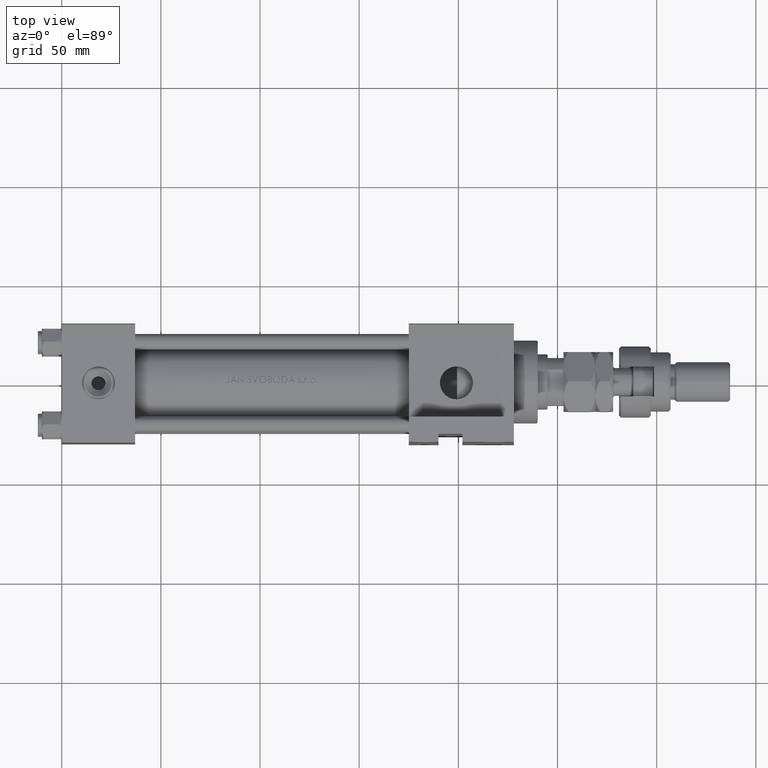
[diagram: clean part render]
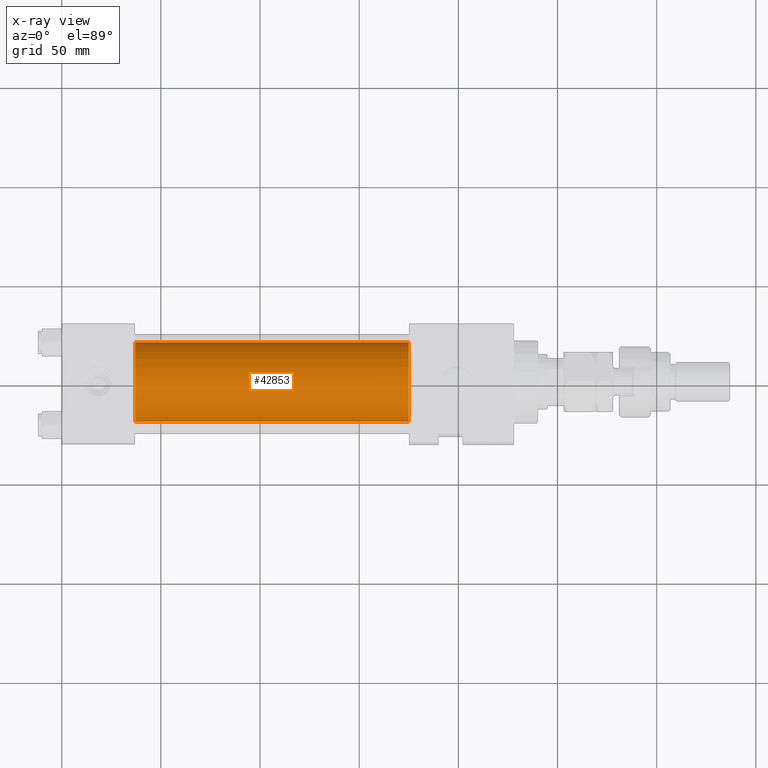
[diagram: x-ray — body ghosted, one internal face saturated and labeled with its STEP entity id]
A machine part, top view, then the same camera in x-ray: the body is ghosted and one INTERNAL B-rep face — a face not visible from any outside direction — is saturated and labeled: STEP entity #42853.
In plain terms, the highlighted cylindrical surface (partial cylindrical patch) has radius 20 mm, axis along (-1, -0, 0).
Its self-contained STEP definition (entity closure, byte-faithful):
#822 = CIRCLE ( 'NONE', #31166, 20.00000000000000000 ) ;
#985 = CYLINDRICAL_SURFACE ( 'NONE', #7741, 20.00000000000000000 ) ;
#3740 = VERTEX_POINT ( 'NONE', #33554 ) ;
#5449 = VERTEX_POINT ( 'NONE', #40893 ) ;
#6328 = CARTESIAN_POINT ( 'NONE',  ( 175.0000000000000284, 2.326828918379970970E-15, -19.00000000000000000 ) ) ;
#7741 = AXIS2_PLACEMENT_3D ( 'NONE', #38441, #22703, #14553 ) ;
#7776 = ORIENTED_EDGE ( 'NONE', *, *, #48169, .T. ) ;
#8664 = VECTOR ( 'NONE', #46732, 1000.000000000000000 ) ;
#9837 = CARTESIAN_POINT ( 'NONE',  ( 175.0000000000000284, -1.224646799147354686E-16, 21.00000000000000000 ) ) ;
#14553 = DIRECTION ( 'NONE',  ( 0.000000000000000000, 0.000000000000000000, 1.000000000000000000 ) ) ;
#15388 = ORIENTED_EDGE ( 'NONE', *, *, #40407, .F. ) ;
#17146 = CARTESIAN_POINT ( 'NONE',  ( 175.0000000000000284, -1.224646799147354686E-16, 1.000000000000000888 ) ) ;
#18720 = VERTEX_POINT ( 'NONE', #6328 ) ;
#19448 = VECTOR ( 'NONE', #46011, 1000.000000000000000 ) ;
#20783 = ORIENTED_EDGE ( 'NONE', *, *, #25328, .T. ) ;
#20932 = CIRCLE ( 'NONE', #44330, 20.00000000000000000 ) ;
#22703 = DIRECTION ( 'NONE',  ( -1.000000000000000000, -0.000000000000000000, -0.000000000000000000 ) ) ;
#25328 = EDGE_CURVE ( 'NONE', #18720, #3740, #49292, .T. ) ;
#26088 = VERTEX_POINT ( 'NONE', #50740 ) ;
#28999 = ORIENTED_EDGE ( 'NONE', *, *, #41178, .F. ) ;
#29630 = DIRECTION ( 'NONE',  ( 0.000000000000000000, 0.000000000000000000, -1.000000000000000000 ) ) ;
#31166 = AXIS2_PLACEMENT_3D ( 'NONE', #38316, #51296, #29630 ) ;
#33279 = CARTESIAN_POINT ( 'NONE',  ( 175.0000000000000284, 2.326828918379970970E-15, -19.00000000000000000 ) ) ;
#33554 = CARTESIAN_POINT ( 'NONE',  ( 37.00000000000000000, 2.326828918379970970E-15, -19.00000000000000000 ) ) ;
#38316 = CARTESIAN_POINT ( 'NONE',  ( 37.00000000000000000, -1.224646799147354686E-16, 1.000000000000000888 ) ) ;
#38441 = CARTESIAN_POINT ( 'NONE',  ( 175.0000000000000284, -1.224646799147354686E-16, 1.000000000000000888 ) ) ;
#40407 = EDGE_CURVE ( 'NONE', #5449, #3740, #822, .T. ) ;
#40893 = CARTESIAN_POINT ( 'NONE',  ( 37.00000000000000000, -1.224646799147354686E-16, 21.00000000000000000 ) ) ;
#41178 = EDGE_CURVE ( 'NONE', #26088, #5449, #50771, .T. ) ;
#42853 = ADVANCED_FACE ( 'NONE', ( #50611 ), #985, .F. ) ;
#44330 = AXIS2_PLACEMENT_3D ( 'NONE', #17146, #49710, #45130 ) ;
#45130 = DIRECTION ( 'NONE',  ( 0.000000000000000000, 0.000000000000000000, -1.000000000000000000 ) ) ;
#46011 = DIRECTION ( 'NONE',  ( -1.000000000000000000, -0.000000000000000000, -0.000000000000000000 ) ) ;
#46732 = DIRECTION ( 'NONE',  ( -1.000000000000000000, -0.000000000000000000, -0.000000000000000000 ) ) ;
#48169 = EDGE_CURVE ( 'NONE', #26088, #18720, #20932, .T. ) ;
#49292 = LINE ( 'NONE', #33279, #19448 ) ;
#49710 = DIRECTION ( 'NONE',  ( 1.000000000000000000, 0.000000000000000000, 0.000000000000000000 ) ) ;
#50611 = FACE_OUTER_BOUND ( 'NONE', #51922, .T. ) ;
#50740 = CARTESIAN_POINT ( 'NONE',  ( 175.0000000000000284, -1.224646799147354686E-16, 21.00000000000000000 ) ) ;
#50771 = LINE ( 'NONE', #9837, #8664 ) ;
#51296 = DIRECTION ( 'NONE',  ( 1.000000000000000000, 0.000000000000000000, 0.000000000000000000 ) ) ;
#51922 = EDGE_LOOP ( 'NONE', ( #7776, #20783, #15388, #28999 ) ) ;